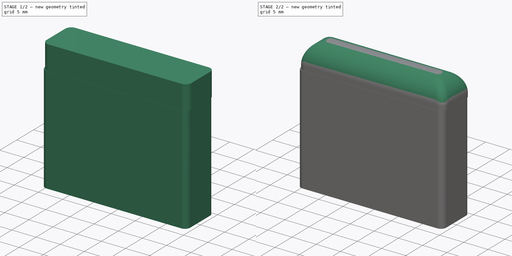
[diagram: build sequence overview — one tinted view per stage of 2, left to right]
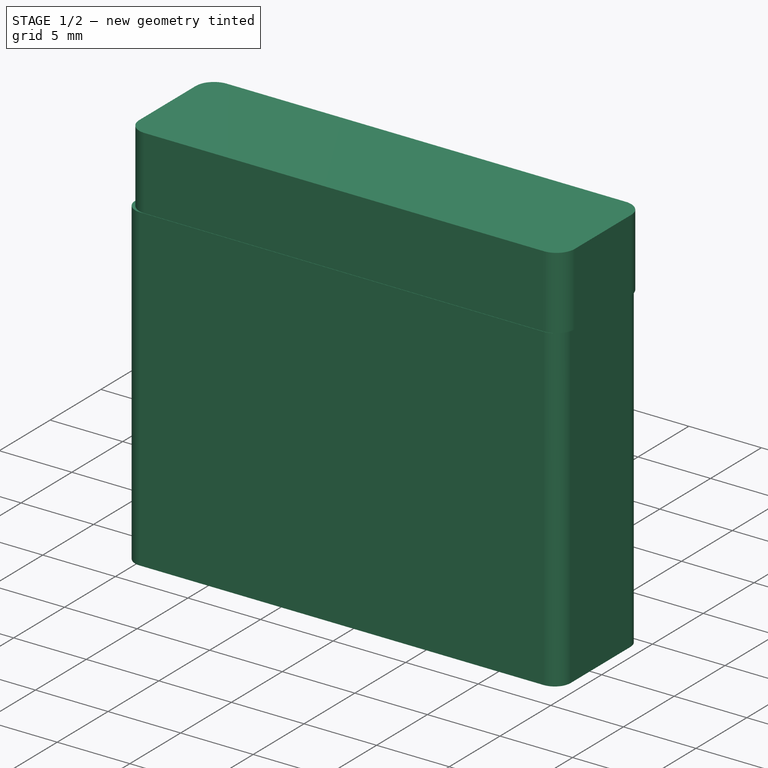
[diagram: stage 1 of 2 — iso view after this stage's code; geometry added in this stage tinted green]
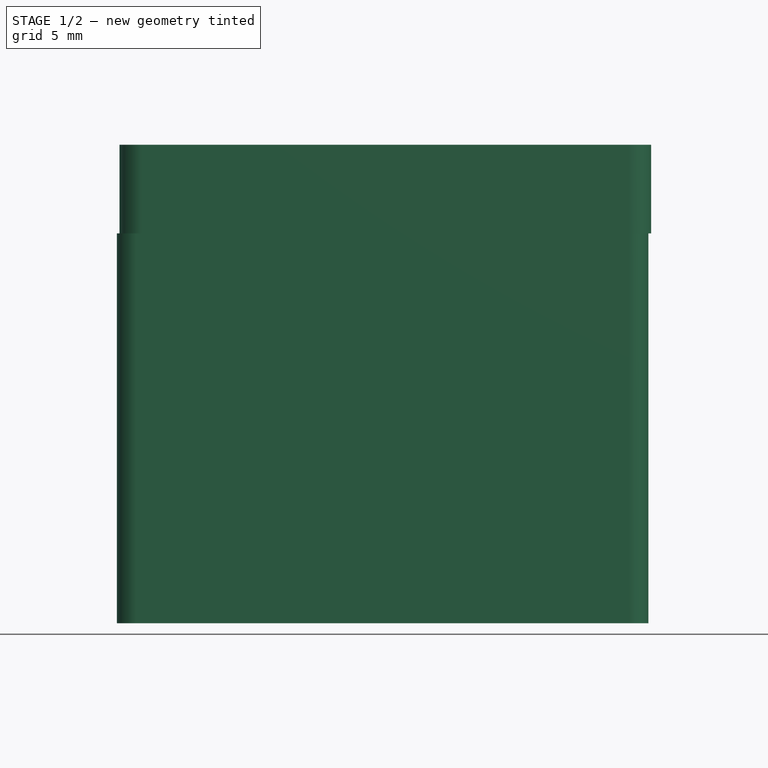
[diagram: stage 1 of 2 — front view after this stage's code; geometry added in this stage tinted green]
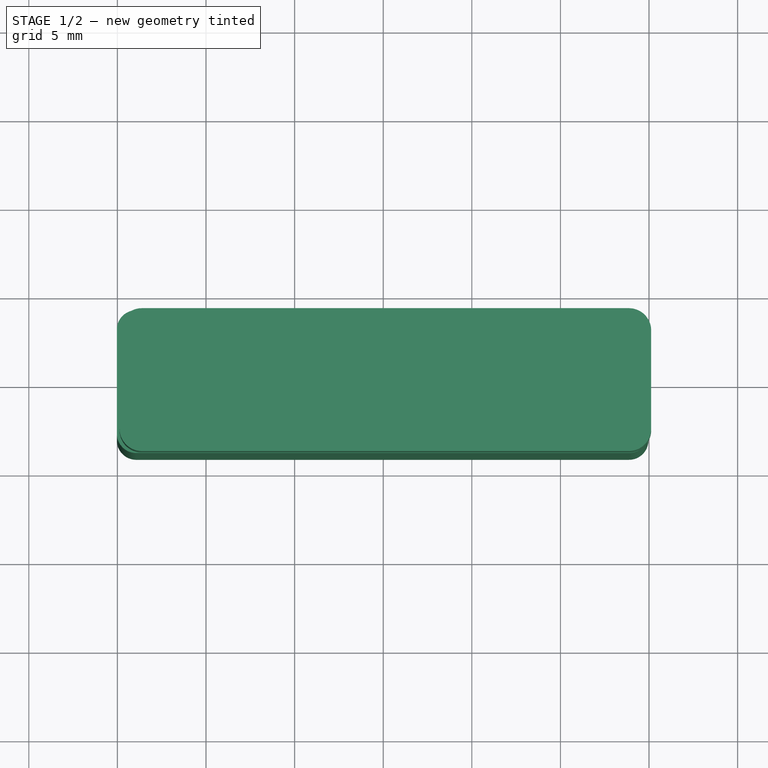
[diagram: stage 1 of 2 — top view after this stage's code; geometry added in this stage tinted green]
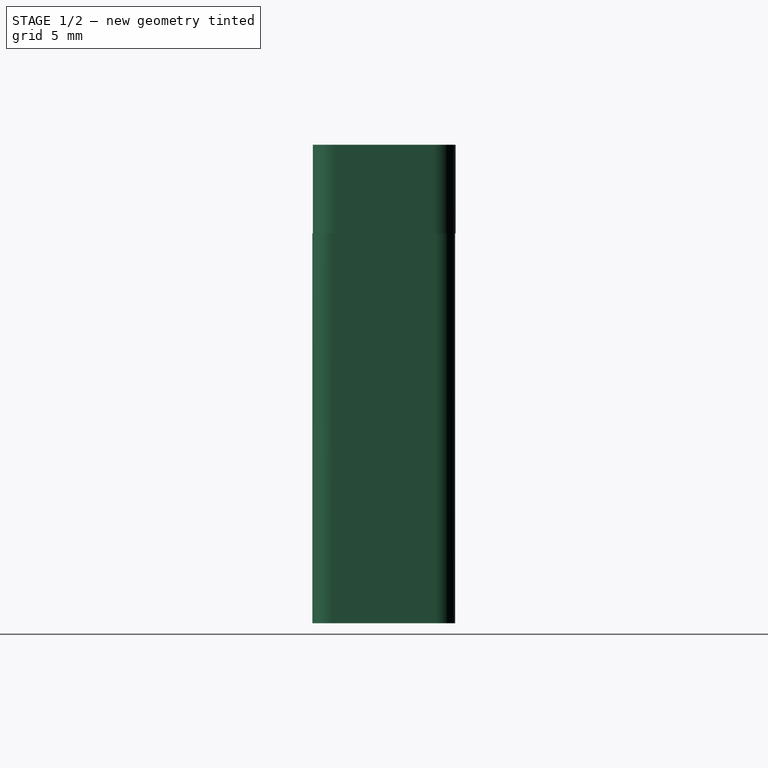
[diagram: stage 1 of 2 — right view after this stage's code; geometry added in this stage tinted green]
FCSTD DOCUMENT  (FreeCAD 0.21R33694 (Git))
Label: lever
License: All rights reserved
LicenseURL: http://en.wikipedia.org/wiki/All_rights_reserved
objects: Sketcher::SketchObject×2, PartDesign::Pad×2, Spreadsheet::Sheet×1, PartDesign::Fillet×1, PartDesign::Body×1
note: 9 computed .brp shape members not serialized (recipe doc carries the construction recipe); baked Part::Feature solids carry a one-line shape summary decoded from their .brp

FEATURE [Sketcher::SketchObject] Sketch
  FullyConstrained = true
  MapMode = 5
  Support = -> [XY_Plane]
  expr: Constraints[32] = <<vars>>.outer_length
  expr: Constraints[33] = <<vars>>.inner_length
  expr: Constraints[34] = <<vars>>.inner_width
  expr: Constraints[35] = <<vars>>.outer_width
  sketch-geometry (18):
    g0: LineSegment StartX=-11.3634 StartY=-0.882751 StartZ=0 EndX=-11.3634 EndY=0.807684 EndZ=0
    g1: LineSegment StartX=-11.0836 StartY=1.08747 StartZ=0 EndX=11.1268 EndY=1.08747 EndZ=0
    g2: LineSegment StartX=11.4066 StartY=0.807684 StartZ=0 EndX=11.4066 EndY=-0.882751 EndZ=0
    g3: LineSegment StartX=11.1268 StartY=-1.16253 StartZ=0 EndX=-11.0836 EndY=-1.16253 EndZ=0
    g4: GeomPoint X=0 Y=0 Z=0
    g5: LineSegment StartX=-15.0332 StartY=-2.99685 StartZ=0 EndX=-15.0332 EndY=2.86863 EndZ=0
    g6: LineSegment StartX=-13.9359 StartY=3.96589 StartZ=0 EndX=13.8695 EndY=3.96589 EndZ=0
    g7: LineSegment StartX=14.9668 StartY=2.86863 StartZ=0 EndX=14.9668 EndY=-2.99685 EndZ=0
    g8: LineSegment StartX=13.8695 StartY=-4.09411 StartZ=0 EndX=-13.9359 EndY=-4.09411 EndZ=0
    g9: GeomPoint X=0 Y=0 Z=0
    g10: ArcOfCircle CenterX=-13.9359 CenterY=2.86863 CenterZ=0 NormalX=0 NormalY=0 NormalZ=1 AngleXU=0 Radius=1.09726 StartAngle=1.5708 EndAngle=3.14159
    g11: ArcOfCircle CenterX=-13.9359 CenterY=-2.99685 CenterZ=0 NormalX=0 NormalY=0 NormalZ=1 AngleXU=0 Radius=1.09726 StartAngle=3.14159 EndAngle=4.71239
    g12: ArcOfCircle CenterX=13.8695 CenterY=2.86863 CenterZ=0 NormalX=0 NormalY=0 NormalZ=1 AngleXU=0 Radius=1.09726 StartAngle=0 EndAngle=1.5708
    g13: ArcOfCircle CenterX=13.8695 CenterY=-2.99685 CenterZ=0 NormalX=0 NormalY=0 NormalZ=1 AngleXU=0 Radius=1.09726 StartAngle=4.71239 EndAngle=6.28319
    g14: ArcOfCircle CenterX=11.1268 CenterY=-0.882751 CenterZ=0 NormalX=0 NormalY=0 NormalZ=1 AngleXU=0 Radius=0.279783 StartAngle=4.71239 EndAngle=6.28319
    g15: ArcOfCircle CenterX=11.1268 CenterY=0.807684 CenterZ=0 NormalX=0 NormalY=0 NormalZ=1 AngleXU=0 Radius=0.279783 StartAngle=0 EndAngle=1.5708
    g16: ArcOfCircle CenterX=-11.0836 CenterY=0.807684 CenterZ=0 NormalX=0 NormalY=0 NormalZ=1 AngleXU=0 Radius=0.279783 StartAngle=1.5708 EndAngle=3.14159
    g17: ArcOfCircle CenterX=-11.0836 CenterY=-0.882751 CenterZ=0 NormalX=0 NormalY=0 NormalZ=1 AngleXU=0 Radius=0.279783 StartAngle=3.14159 EndAngle=4.71239
  constraints (41):
    c: Horizontal(g1)
    c: Horizontal(g3)
    c: Vertical(g0)
    c: Vertical(g2)
    c: Coincident(g4,g-1)
    c: Horizontal(g6)
    c: Horizontal(g8)
    c: Vertical(g5)
    c: Vertical(g7)
    c: Coincident(g9,g4)
    c: Tangent(g5,g10) = 1.5708
    c: Tangent(g6,g10) = 1.5708
    c: Tangent(g5,g11) = 1.5708
    c: Tangent(g8,g11) = 1.5708
    c: Tangent(g6,g12) = 1.5708
    c: Tangent(g7,g12) = 1.5708
    c: Tangent(g7,g13) = 1.5708
    c: Tangent(g8,g13) = 1.5708
    c: Tangent(g2,g14) = 1.5708
    c: Tangent(g3,g14) = 1.5708
    c: Tangent(g1,g15) = 1.5708
    c: Tangent(g2,g15) = 1.5708
    c: Tangent(g0,g16) = 1.5708
    c: Tangent(g1,g16) = 1.5708
    c: Tangent(g0,g17) = 1.5708
    c: Tangent(g3,g17) = 1.5708
    c: Equal(g10,g12)
    c: Equal(g12,g13)
    c: Equal(g13,g11)
    c: Equal(g16,g15)
    c: Equal(g15,g14)
    c: Equal(g14,g17)
    c: DistanceX(g5,g7) = 30
    c: DistanceX(g0,g2) = 22.77
    c: DistanceY(g3,g1) = 2.25
    c: DistanceY(g8,g6) = 8.06
    c: Block(g16)
    c: Block(g17)
    c: Block(g15)
    c: Block(g14)
    c: Block(g12)
FEATURE [PartDesign::Pad] Pad
  Direction = (0,0,1)
  Length = 22
  Length2 = 10
  Profile = -> Sketch
  ReferenceAxis = -> Sketch [N_Axis]
  Type = 0
  expr: Length = <<vars>>.height
FEATURE [Sketcher::SketchObject] Sketch001
  FullyConstrained = true
  MapMode = 5
  Placement = pos=(0,0,22) rot=(0,0,1;0rad)
  Support = -> [Pad]
  expr: Constraints[13] = <<vars>>.outer_length
  expr: Constraints[16] = <<vars>>.outer_width
  sketch-geometry (9):
    g0: LineSegment StartX=15.1213 StartY=-2.8099 StartZ=0 EndX=15.1213 EndY=2.73681 EndZ=0
    g1: LineSegment StartX=13.8646 StartY=3.99346 StartZ=0 EndX=-13.6221 EndY=3.99346 EndZ=0
    g2: LineSegment StartX=-14.8787 StartY=2.73681 StartZ=0 EndX=-14.8787 EndY=-2.8099 EndZ=0
    g3: LineSegment StartX=-13.6221 StartY=-4.06654 StartZ=0 EndX=13.8646 EndY=-4.06654 EndZ=0
    g4: GeomPoint X=0 Y=0 Z=0
    g5: ArcOfCircle CenterX=-13.6221 CenterY=2.73681 CenterZ=0 NormalX=0 NormalY=0 NormalZ=1 AngleXU=0 Radius=1.25665 StartAngle=1.5708 EndAngle=3.14159
    g6: ArcOfCircle CenterX=-13.6221 CenterY=-2.8099 CenterZ=0 NormalX=0 NormalY=0 NormalZ=1 AngleXU=0 Radius=1.25665 StartAngle=3.14159 EndAngle=4.71239
    g7: ArcOfCircle CenterX=13.8646 CenterY=-2.8099 CenterZ=0 NormalX=0 NormalY=0 NormalZ=1 AngleXU=0 Radius=1.25665 StartAngle=4.71239 EndAngle=6.28319
    g8: ArcOfCircle CenterX=13.8646 CenterY=2.73681 CenterZ=0 NormalX=0 NormalY=0 NormalZ=1 AngleXU=0 Radius=1.25665 StartAngle=0 EndAngle=1.5708
  constraints (19):
    c: Horizontal(g1)
    c: Horizontal(g3)
    c: Vertical(g0)
    c: Vertical(g2)
    c: Coincident(g4,g-1)
    c: Tangent(g1,g5) = -1.5708
    c: Tangent(g2,g5) = -1.5708
    c: Tangent(g2,g6) = -1.5708
    c: Tangent(g3,g6) = -1.5708
    c: Tangent(g0,g7) = -1.5708
    c: Tangent(g3,g7) = -1.5708
    c: Tangent(g0,g8) = -1.5708
    c: Tangent(g1,g8) = -1.5708
    c: DistanceX(g2,g0) = 30
    c: Equal(g1,g3)
    c: Equal(g2,g0)
    c: DistanceY(g3,g1) = 8.06
    c: Equal(g5,g6)
    c: Block(g5)
FEATURE [Spreadsheet::Sheet] Spreadsheet  label="vars"
  cells = A1='outer length; B1(outer_length)==30 mm; A2='outer width; B2(outer_width)==8.06 mm; A3='inner length; B3(inner_length)==22.77 mm; A4='inner width; B4(inner_width)==2.25 mm; A5='height; B5(height)==22 mm; A6='cap; B6(cap)==5 mm
FEATURE [PartDesign::Pad] Pad001
  BaseFeature = -> Pad
  Direction = (0,0,1)
  Length = 5
  Length2 = 10
  Profile = -> Sketch001
  ReferenceAxis = -> Sketch001 [N_Axis]
  Type = 0
  expr: Length = <<vars>>.cap
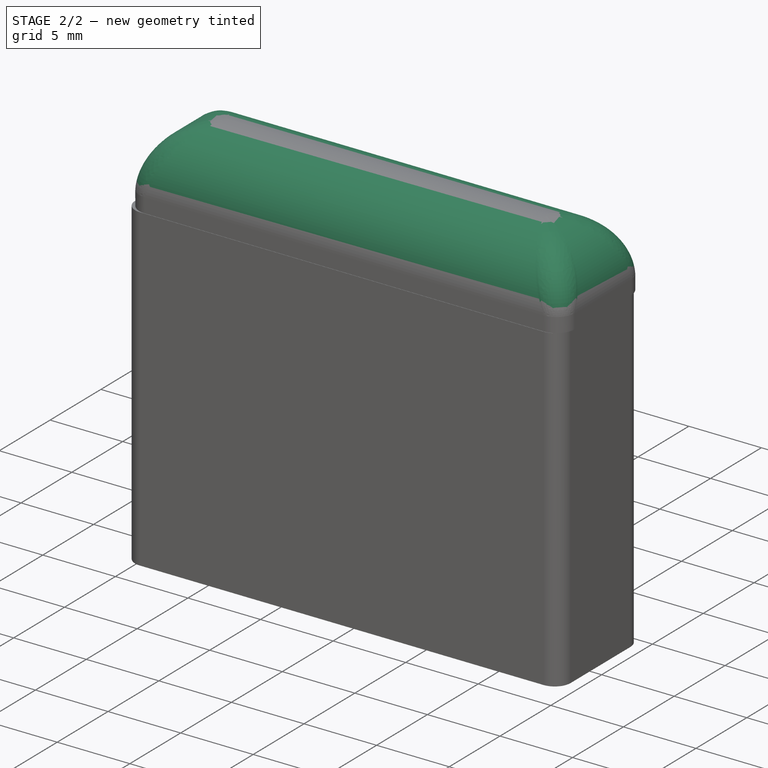
[diagram: stage 2 of 2 — iso view after this stage's code; geometry added in this stage tinted green]
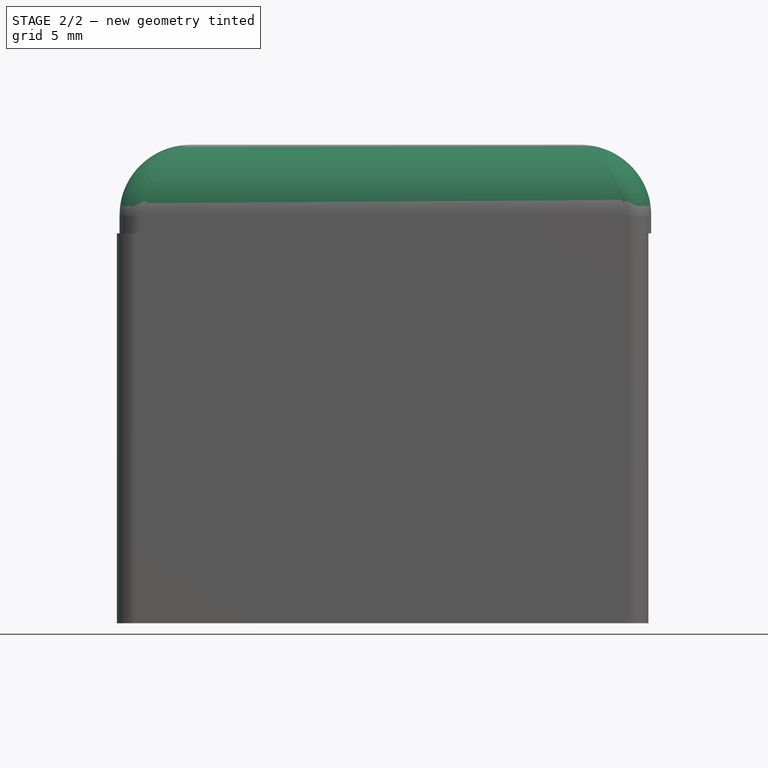
[diagram: stage 2 of 2 — front view after this stage's code; geometry added in this stage tinted green]
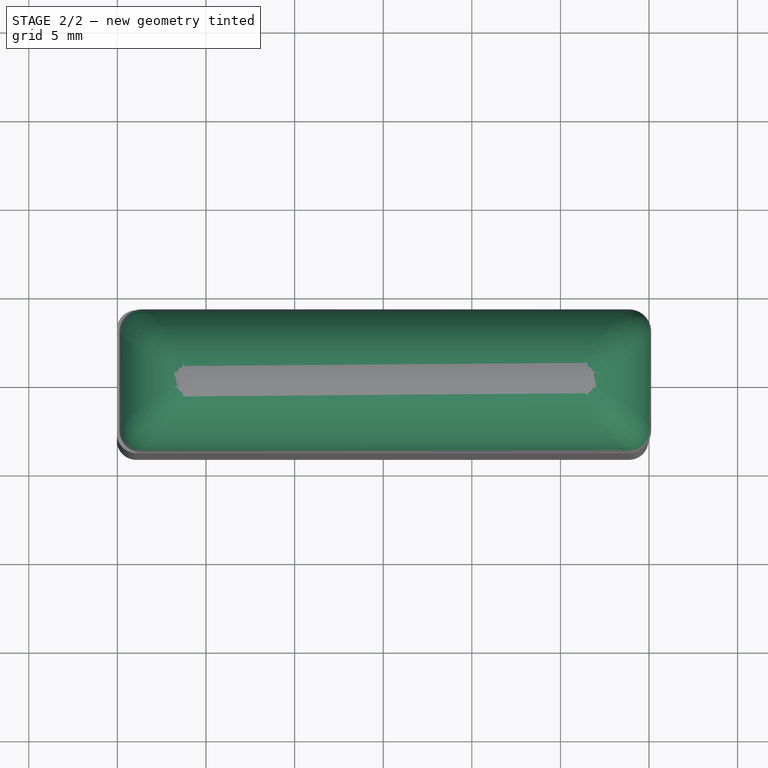
[diagram: stage 2 of 2 — top view after this stage's code; geometry added in this stage tinted green]
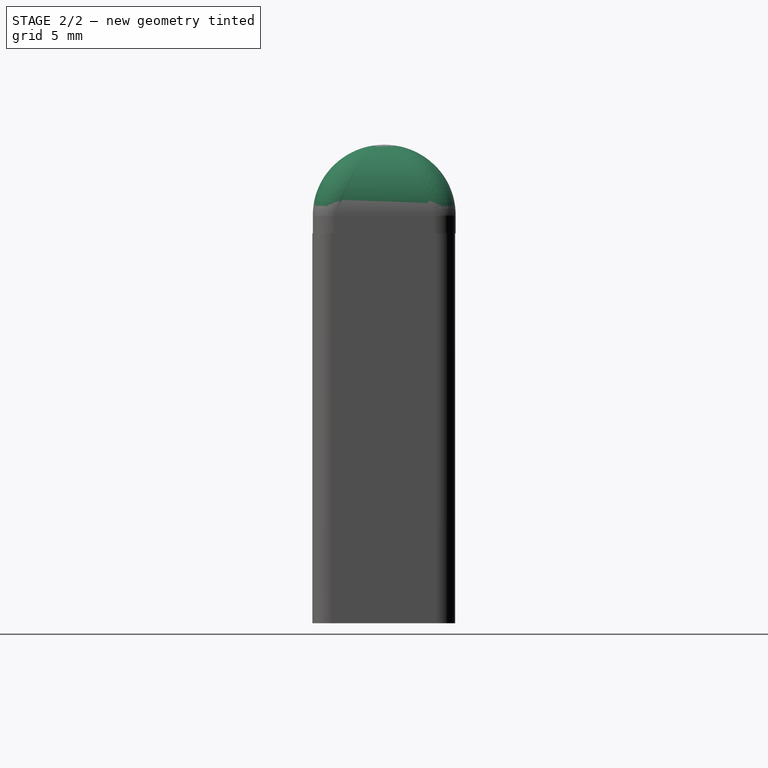
[diagram: stage 2 of 2 — right view after this stage's code; geometry added in this stage tinted green]
FEATURE [PartDesign::Fillet] Fillet
  Base = -> Pad001 [Face27]
  BaseFeature = -> Pad001
  Radius = 4
  SupportTransform = false
  UseAllEdges = false
FEATURE [PartDesign::Body] Body
  Group = -> [Sketch,Pad,Sketch001,Pad001,Fillet]
  Origin = -> Origin
  Tip = -> Fillet
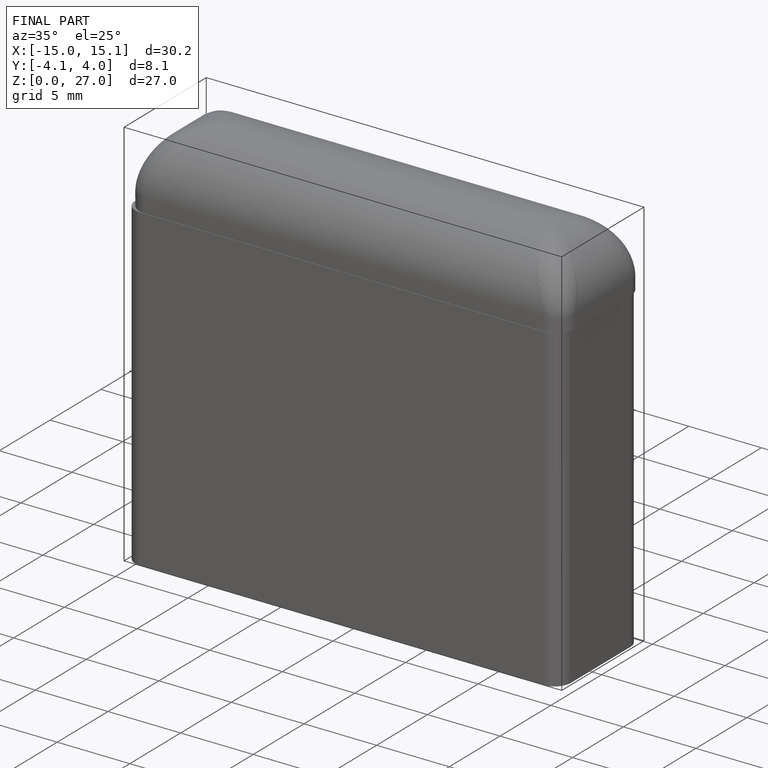
[diagram: finished part — iso view with bounding-box wireframe]
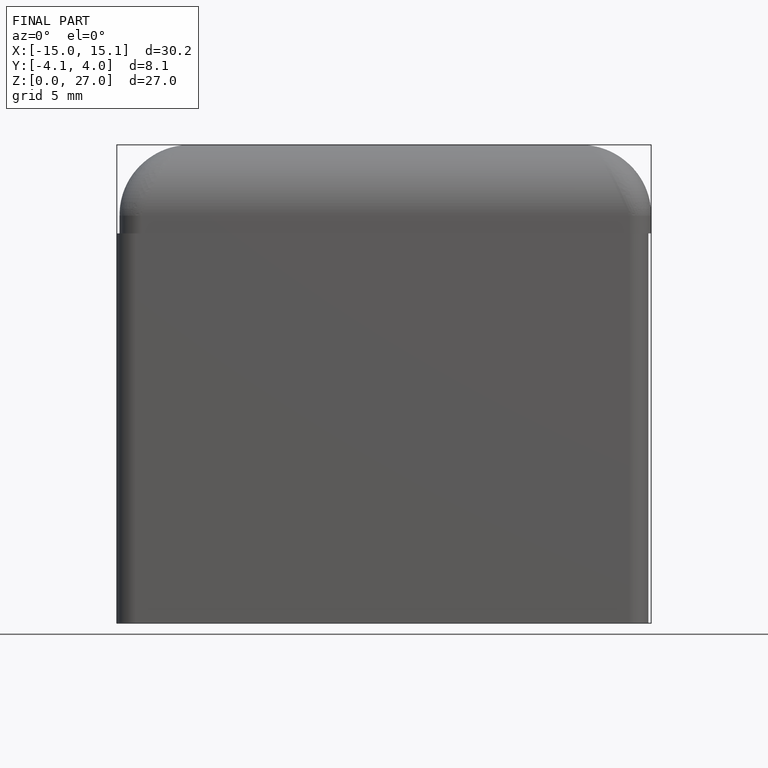
[diagram: finished part — front view with bounding-box wireframe]
